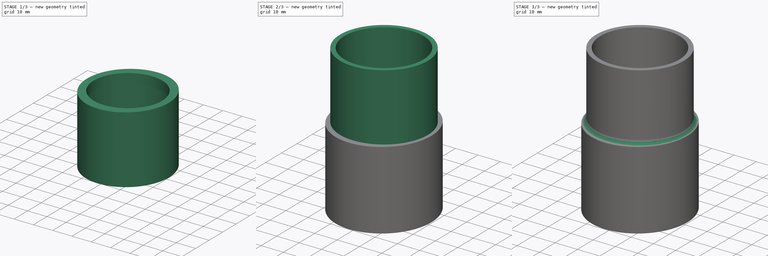
[diagram: build sequence overview — one tinted view per stage of 3, left to right]
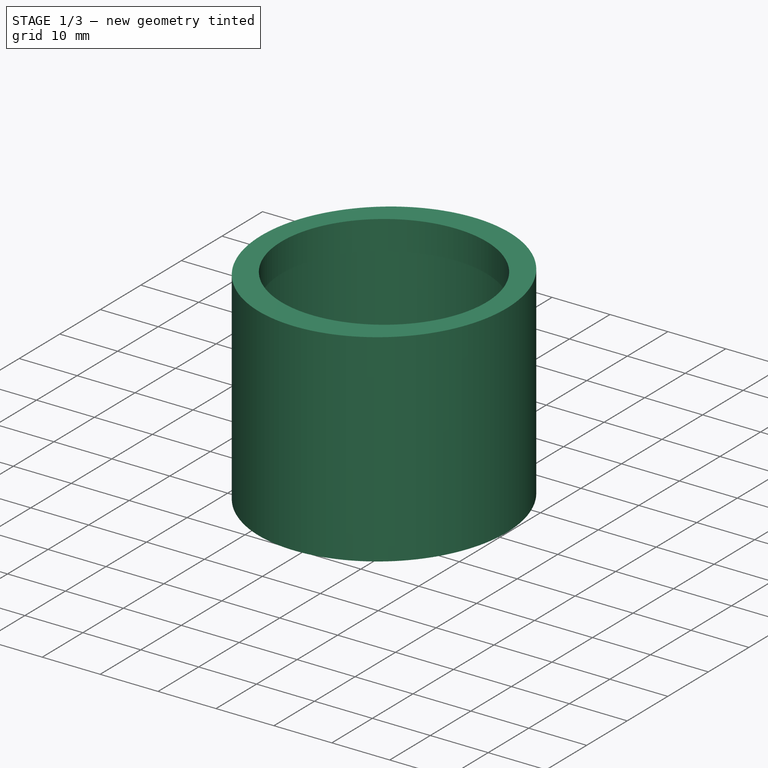
[diagram: stage 1 of 3 — iso view after this stage's code; geometry added in this stage tinted green]
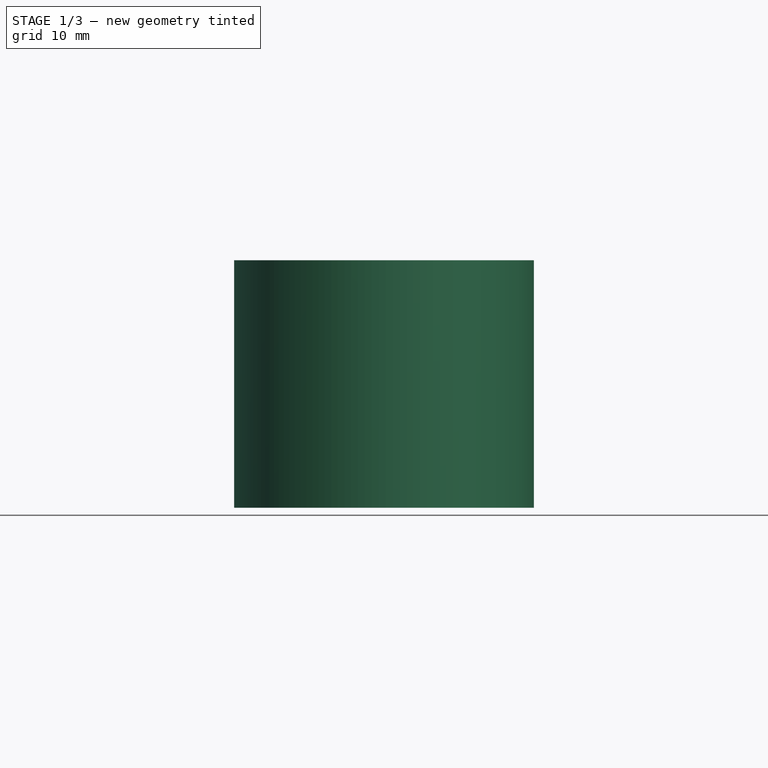
[diagram: stage 1 of 3 — front view after this stage's code; geometry added in this stage tinted green]
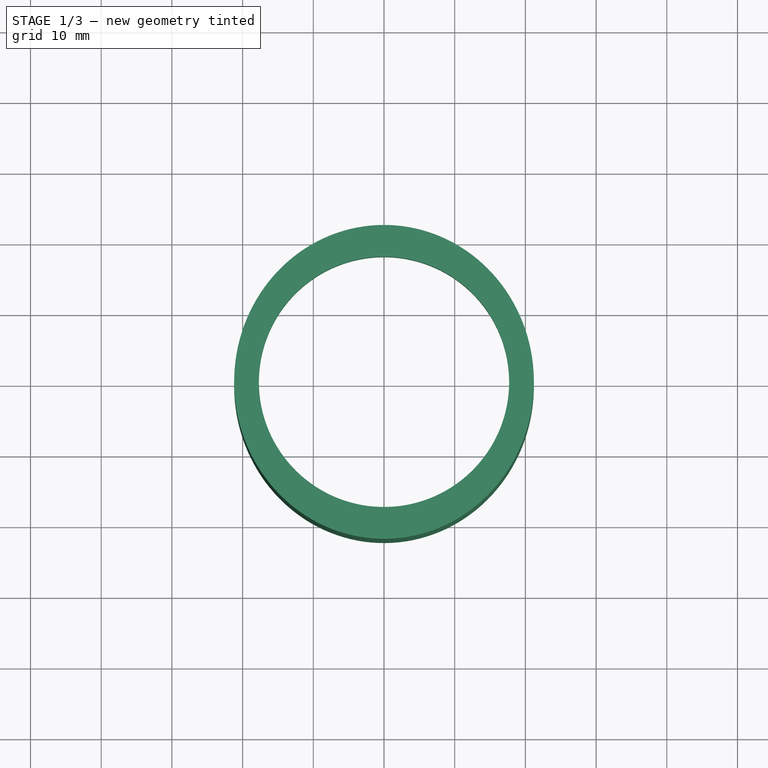
[diagram: stage 1 of 3 — top view after this stage's code; geometry added in this stage tinted green]
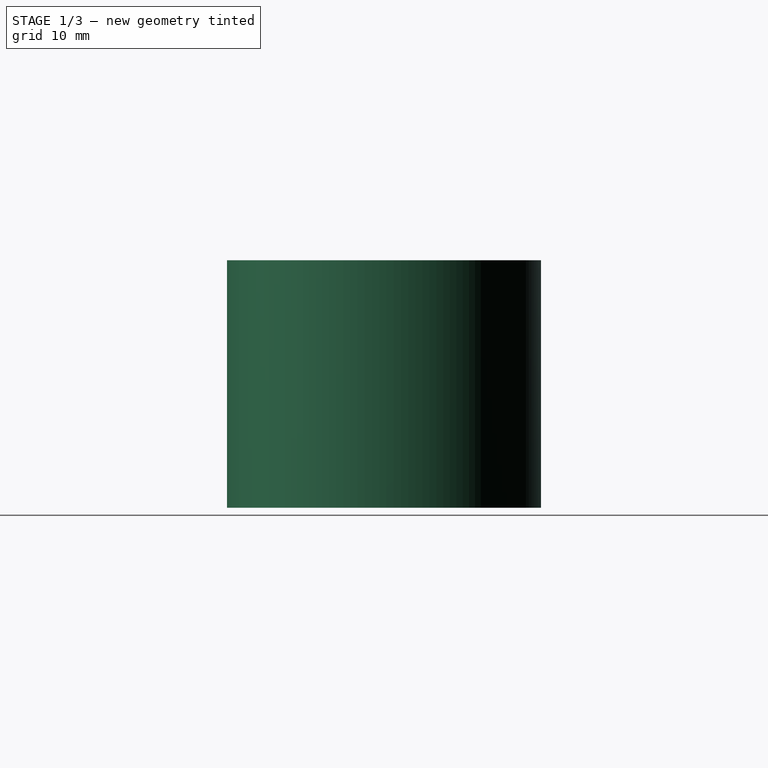
[diagram: stage 1 of 3 — right view after this stage's code; geometry added in this stage tinted green]
FCSTD DOCUMENT  (FreeCAD 0.21R33694 (Git))
Label: 38-40-2-35
License: All rights reserved
LicenseURL: http://en.wikipedia.org/wiki/All_rights_reserved
objects: Sketcher::SketchObject×3, PartDesign::Pad×3, PartDesign::Fillet×2, PartDesign::Body×1
note: 14 computed .brp shape members not serialized (recipe doc carries the construction recipe); baked Part::Feature solids carry a one-line shape summary decoded from their .brp

FEATURE [Sketcher::SketchObject] Sketch
  FullyConstrained = false
  MapMode = 5
  Support = -> [XY_Plane]
  sketch-geometry (14):
    g0: LineSegment StartX=0 StartY=0 StartZ=0 EndX=19.2 EndY=0 EndZ=0
    g1: LineSegment StartX=0 StartY=0 StartZ=0 EndX=0 EndY=20.2 EndZ=0
    g2: Ellipse CenterX=0 CenterY=0 CenterZ=0 NormalX=0 NormalY=0 NormalZ=1 MajorRadius=20.2 MinorRadius=19.2 AngleXU=1.5708
    g3: LineSegment StartX=0 StartY=20.2 StartZ=0 EndX=0 EndY=-20.2 EndZ=0
    g4: LineSegment StartX=-19.2 StartY=0 StartZ=0 EndX=19.2 EndY=0 EndZ=0
    g5: GeomPoint X=0 Y=6.27694 Z=0
    g6: GeomPoint X=0 Y=-6.27694 Z=0
    g7: LineSegment StartX=0 StartY=20.2 StartZ=0 EndX=0 EndY=22.2 EndZ=0
    g8: LineSegment StartX=19.2 StartY=0 StartZ=0 EndX=21.2 EndY=0 EndZ=0
    g9: Ellipse CenterX=0 CenterY=0 CenterZ=0 NormalX=0 NormalY=0 NormalZ=1 MajorRadius=22.2 MinorRadius=21.2 AngleXU=1.5708
    g10: LineSegment StartX=0 StartY=22.2 StartZ=0 EndX=0 EndY=-22.2 EndZ=0
    g11: LineSegment StartX=-21.2 StartY=0 StartZ=0 EndX=21.2 EndY=0 EndZ=0
    g12: GeomPoint X=0 Y=6.58787 Z=0
    g13: GeomPoint X=0 Y=-6.58787 Z=0
  constraints (20):
    c: Coincident(g0,g-1)
    c: PointOnObject(g0,g-1)
    c: Coincident(g1,g0)
    c: PointOnObject(g1,g-2)
    c: DistanceX(g0,g0) = 19.2
    c: DistanceY(g1,g1) = 20.2
    c: InternalAlignment(g3-g6 -> g2) x4
    c: Coincident(g2,g0)
    c: PointOnObject(g1,g2)
    c: PointOnObject(g0,g2)
    c: Coincident(g7,g1)
    c: PointOnObject(g7,g-2)
    c: Coincident(g8,g0)
    c: PointOnObject(g8,g-1)
    c: DistanceY(g7,g7) = 2
    c: DistanceX(g8,g8) = 2
    c: InternalAlignment(g10-g13 -> g9) x4
    c: Coincident(g9,g2)
    c: PointOnObject(g7,g9)
    c: PointOnObject(g8,g9)
FEATURE [PartDesign::Pad] Pad
  Direction = (0,0,1)
  Length = 30
  Length2 = 10
  Profile = -> Sketch
  ReferenceAxis = -> Sketch [N_Axis]
  Type = 0
FEATURE [Sketcher::SketchObject] Sketch001
  ExternalGeometry = -> [Pad]
  FullyConstrained = false
  MapMode = 5
  Placement = pos=(0,0,30) rot=(0,0,1;0rad)
  Support = -> [Pad]
  sketch-geometry (8):
    g0: GeomPoint X=0 Y=22.2 Z=0
    g1: GeomPoint X=21.2 Y=0 Z=0
    g2: Ellipse CenterX=0 CenterY=0 CenterZ=0 NormalX=0 NormalY=0 NormalZ=1 MajorRadius=22.2 MinorRadius=21.2 AngleXU=1.5708
    g3: LineSegment StartX=0 StartY=22.2 StartZ=0 EndX=0 EndY=-22.2 EndZ=0
    g4: LineSegment StartX=-21.2 StartY=0 StartZ=0 EndX=21.2 EndY=0 EndZ=0
    g5: GeomPoint X=0 Y=6.58787 Z=0
    g6: GeomPoint X=0 Y=-6.58787 Z=0
    g7: Circle CenterX=0 CenterY=0 CenterZ=0 NormalX=0 NormalY=0 NormalZ=1 AngleXU=0 Radius=17.7
  constraints (10):
    c: PointOnObject(g0,g-4)
    c: PointOnObject(g1,g-1)
    c: PointOnObject(g0,g-2)
    c: PointOnObject(g1,g-4)
    c: InternalAlignment(g3-g6 -> g2) x4
    c: Coincident(g2,g-4)
    c: PointOnObject(g0,g2)
    c: PointOnObject(g1,g2)
    c: Coincident(g7,g2)
    c: Diameter(g7) = 35.4
FEATURE [PartDesign::Pad] Pad001
  BaseFeature = -> Pad
  Direction = (0,0,1)
  Length = 5
  Length2 = 10
  Profile = -> Sketch001
  ReferenceAxis = -> Sketch001 [N_Axis]
  Type = 0
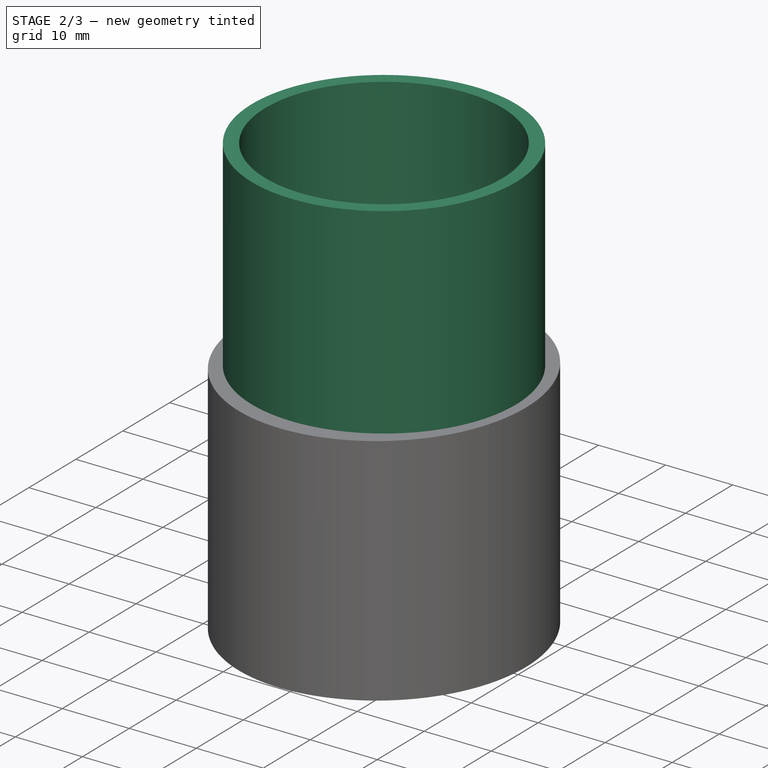
[diagram: stage 2 of 3 — iso view after this stage's code; geometry added in this stage tinted green]
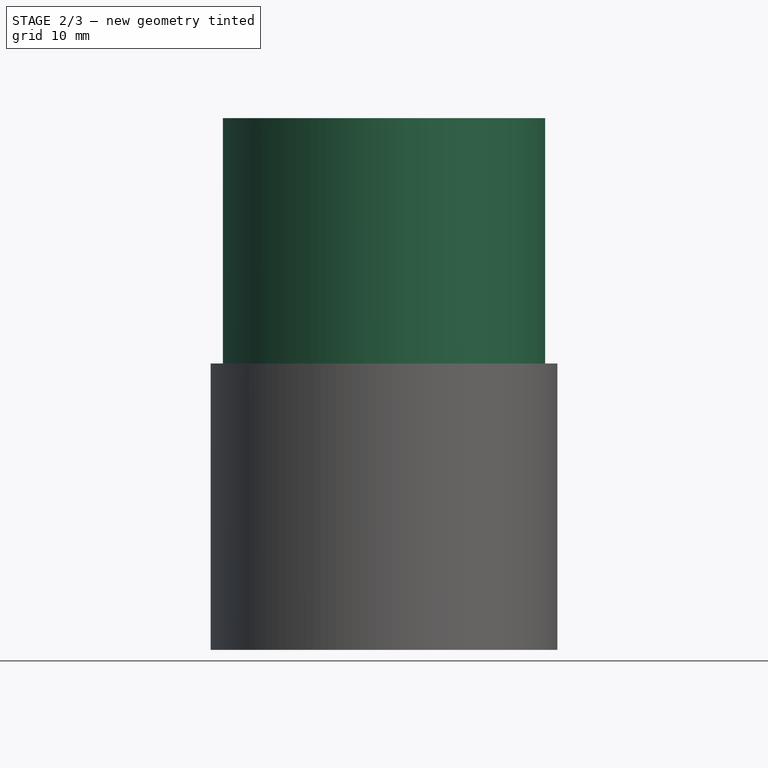
[diagram: stage 2 of 3 — front view after this stage's code; geometry added in this stage tinted green]
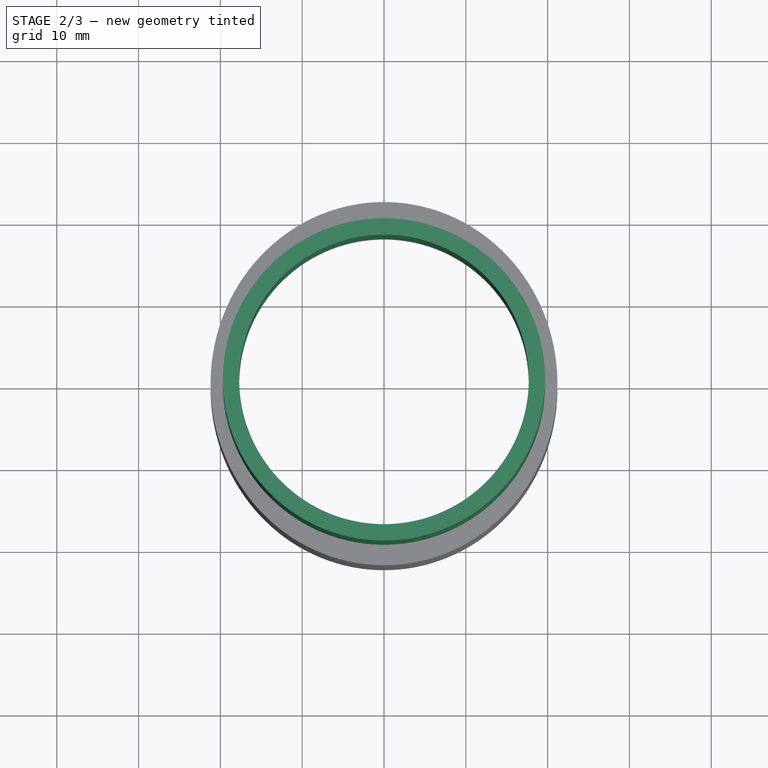
[diagram: stage 2 of 3 — top view after this stage's code; geometry added in this stage tinted green]
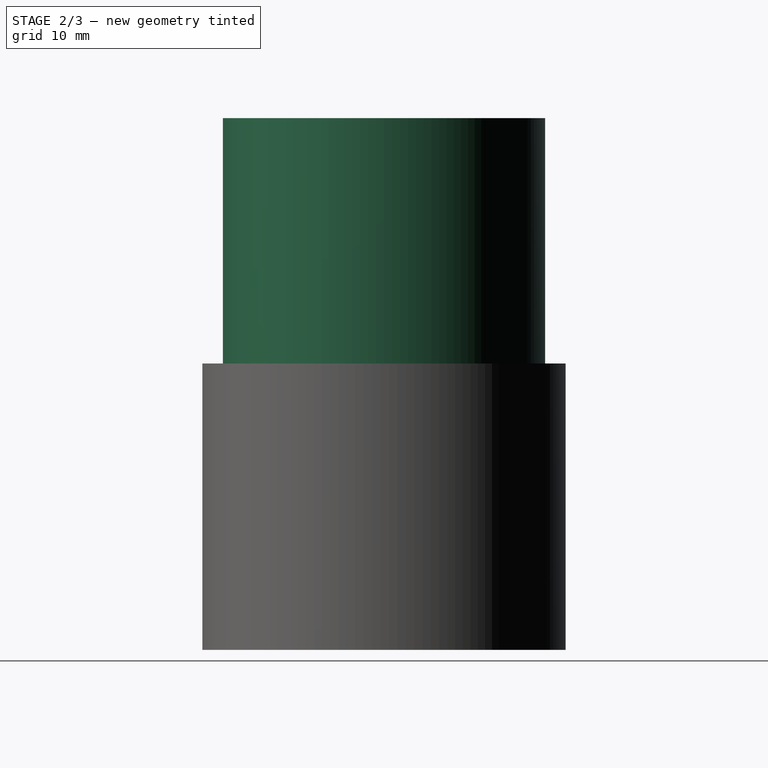
[diagram: stage 2 of 3 — right view after this stage's code; geometry added in this stage tinted green]
FEATURE [Sketcher::SketchObject] Sketch002
  ExternalGeometry = -> [Pad001]
  FullyConstrained = false
  MapMode = 5
  Placement = pos=(0,0,35) rot=(0,0,1;0rad)
  Support = -> [Pad001]
  sketch-geometry (2):
    g0: Circle CenterX=0 CenterY=0 CenterZ=0 NormalX=0 NormalY=0 NormalZ=1 AngleXU=0 Radius=17.7
    g1: Circle CenterX=0 CenterY=0 CenterZ=0 NormalX=0 NormalY=0 NormalZ=1 AngleXU=0 Radius=19.7
  constraints (3):
    c: Coincident(g0,g-3)
    c: Coincident(g1,g0)
    c: Diameter(g1) = 39.4
FEATURE [PartDesign::Pad] Pad002
  BaseFeature = -> Pad001
  Direction = (0,0,1)
  Length = 30
  Length2 = 10
  Profile = -> Sketch002
  ReferenceAxis = -> Sketch002 [N_Axis]
  Type = 0
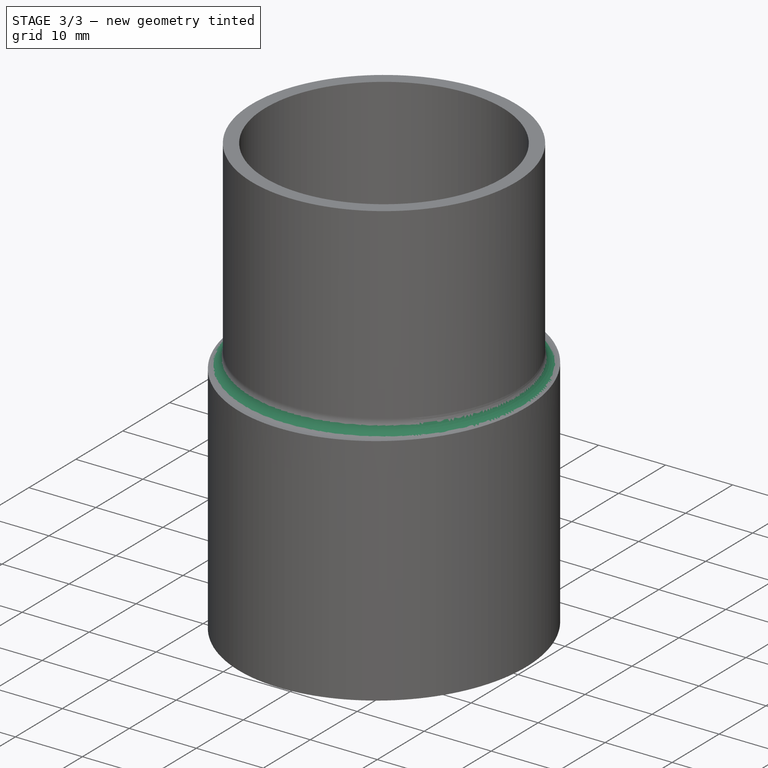
[diagram: stage 3 of 3 — iso view after this stage's code; geometry added in this stage tinted green]
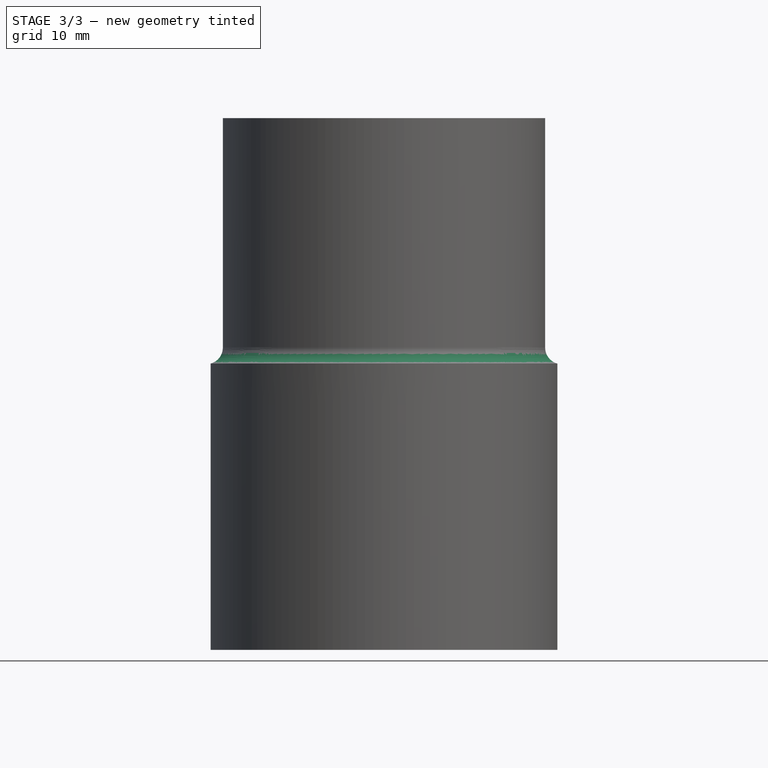
[diagram: stage 3 of 3 — front view after this stage's code; geometry added in this stage tinted green]
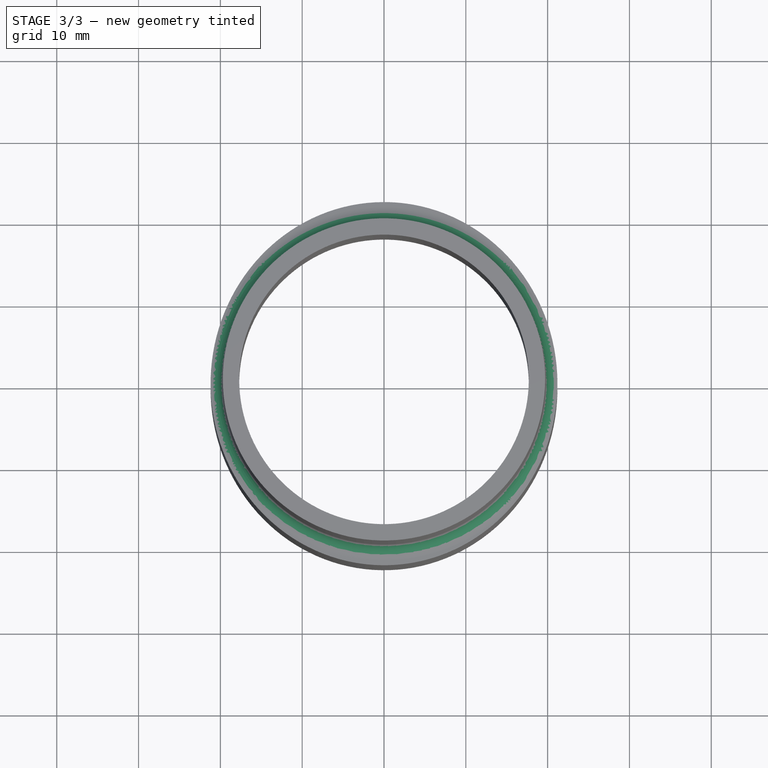
[diagram: stage 3 of 3 — top view after this stage's code; geometry added in this stage tinted green]
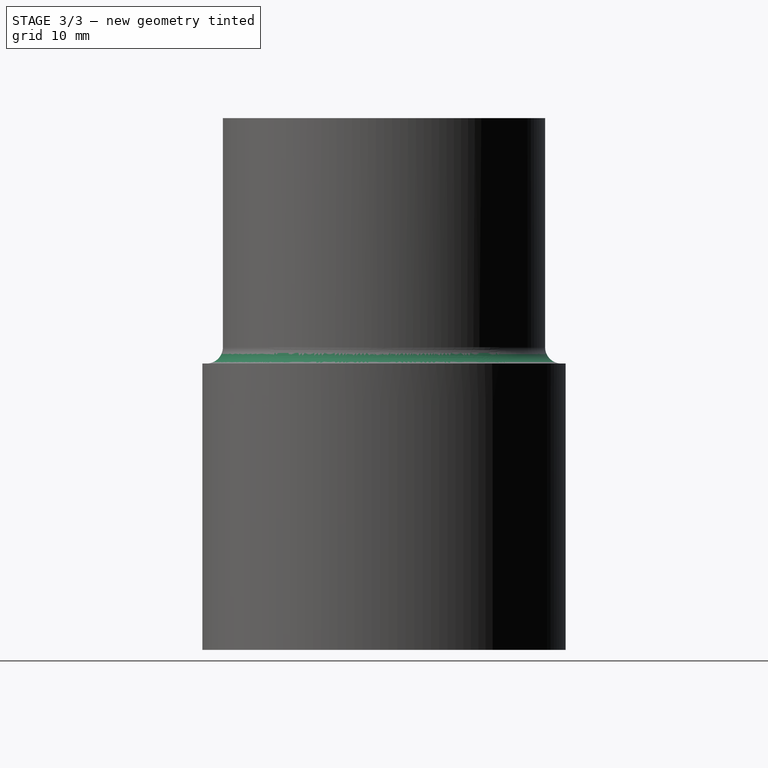
[diagram: stage 3 of 3 — right view after this stage's code; geometry added in this stage tinted green]
FEATURE [PartDesign::Fillet] Fillet
  Base = -> Pad002 [Edge8]
  BaseFeature = -> Pad002
  Radius = 2
  SupportTransform = false
  UseAllEdges = false
FEATURE [PartDesign::Fillet] Fillet001
  Base = -> Fillet [Edge32]
  BaseFeature = -> Fillet
  Radius = 2
  SupportTransform = false
  UseAllEdges = false
FEATURE [PartDesign::Body] Body
  Group = -> [Sketch,Pad,Sketch001,Pad001,Sketch002,Pad002,Fillet,Fillet001]
  Origin = -> Origin
  Tip = -> Fillet001
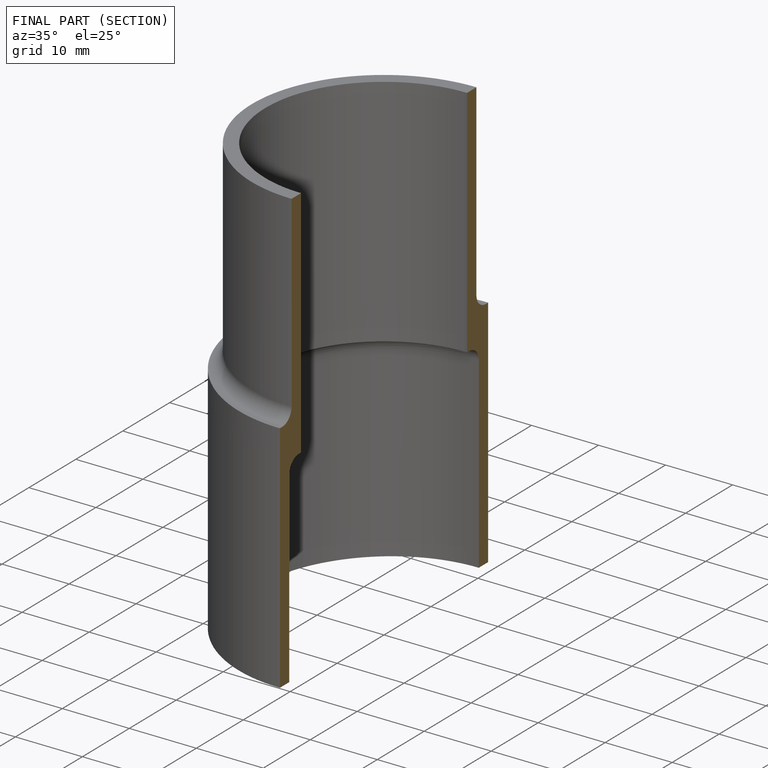
[diagram: finished part — half-section view (interior)]
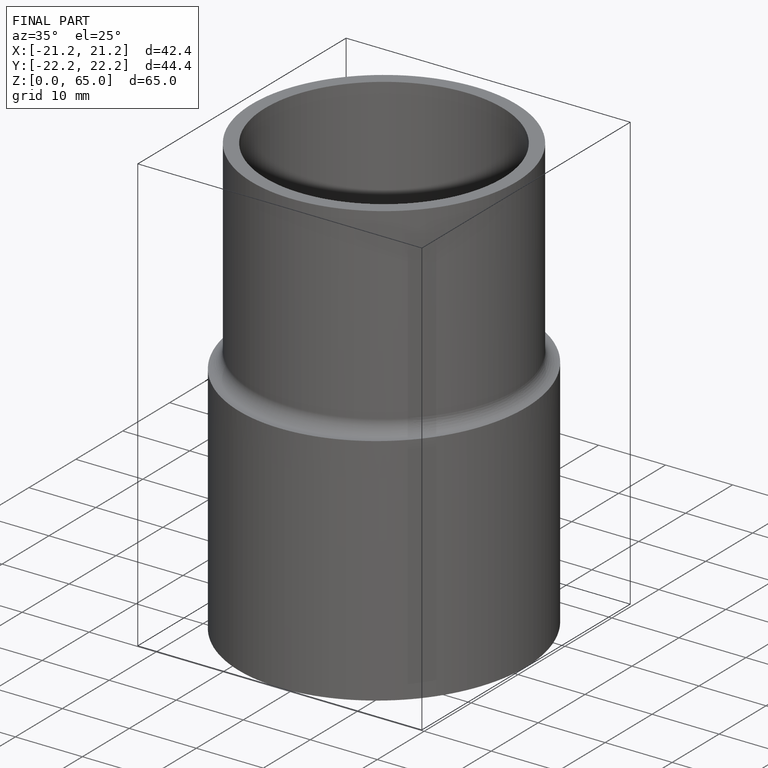
[diagram: finished part — iso view with bounding-box wireframe]
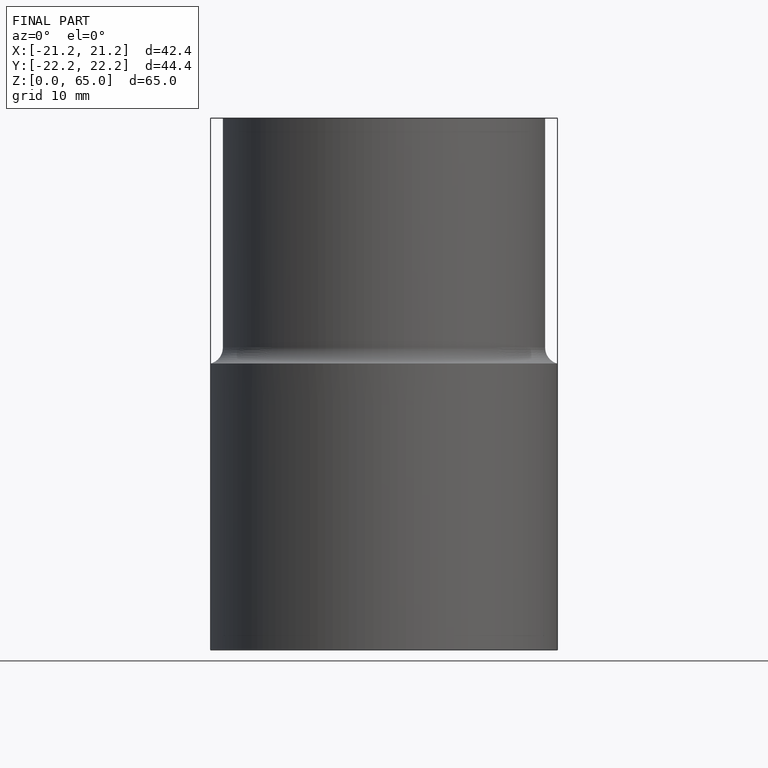
[diagram: finished part — front view with bounding-box wireframe]
